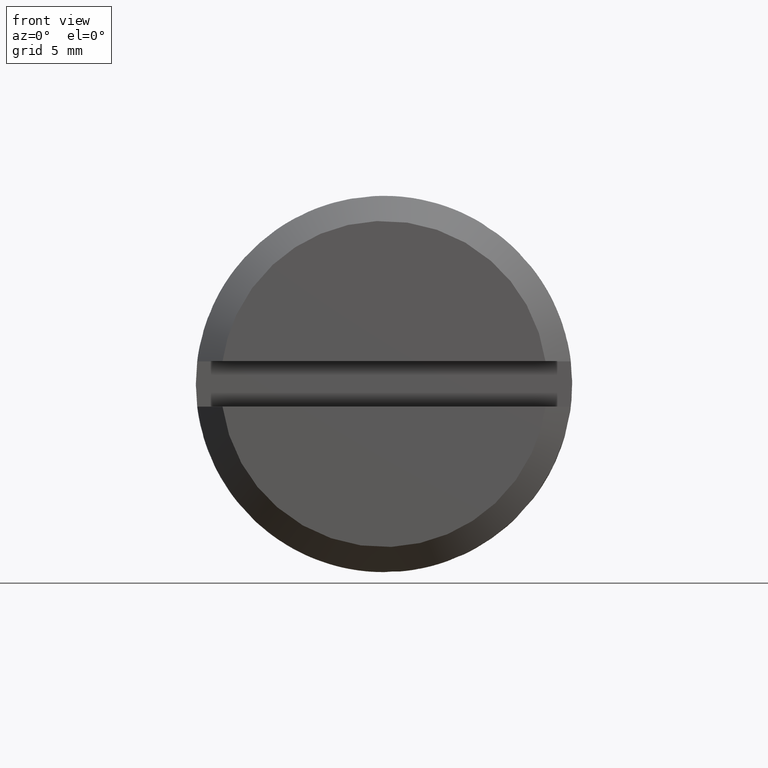
[diagram: clean part render]
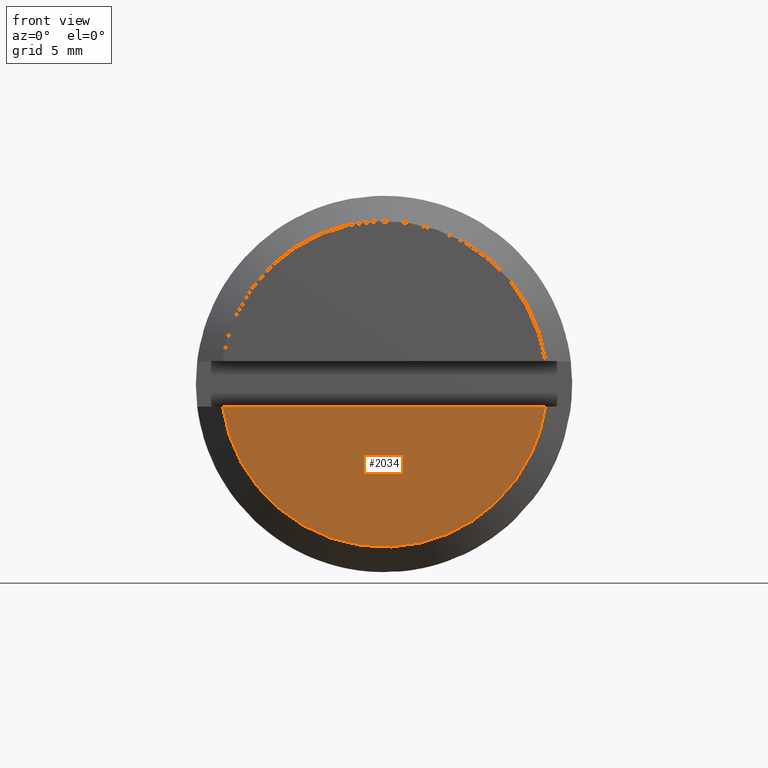
[diagram: same view with one face highlighted and labeled with its STEP entity id]
A machine part, front view. The second image highlights one B-rep face of the part: STEP entity #2034.
In plain terms, the highlighted face is a freeform B-spline surface patch.
Its self-contained STEP definition (entity closure, byte-faithful):
#1807=CARTESIAN_POINT('',(-10.0,6.437390775772459,-0.899999999999984));
#1808=VERTEX_POINT('',#1807);
#1816=CARTESIAN_POINT('',(-10.0,-6.437390775772459,-0.899999999999984));
#1817=VERTEX_POINT('',#1816);
#1818=CARTESIAN_POINT('',(-10.0,6.437390775772459,-0.899999999999984));
#1819=CARTESIAN_POINT('',(-10.0,-6.437390775772459,-0.899999999999984));
#1820=QUASI_UNIFORM_CURVE('',1,(#1818,#1819),.UNSPECIFIED.,.F.,.U.);
#1821=EDGE_CURVE('',#1808,#1817,#1820,.T.);
#1966=CARTESIAN_POINT('',(-10.0,6.437390775772435,-0.899999999999981));
#1967=CARTESIAN_POINT('',(-10.000000000000002,5.654464870610936,-6.500000000000000));
#1968=CARTESIAN_POINT('',(-10.0,0.0,-6.500000000000000));
#1969=CARTESIAN_POINT('',(-10.000000000000002,-5.654464870610934,-6.500000000000000));
#1970=CARTESIAN_POINT('',(-10.0,-6.437390775772435,-0.899999999999984));
#1978=(BOUNDED_CURVE()B_SPLINE_CURVE(2,(#1966,#1967,#1968,#1969,#1970),.UNSPECIFIED.,.F.,.U.)B_SPLINE_CURVE_WITH_KNOTS((3,2,3),(0.0,0.500000000000000,1.0),.UNSPECIFIED.)CURVE()GEOMETRIC_REPRESENTATION_ITEM()RATIONAL_B_SPLINE_CURVE((1.0,0.754473836014721,1.0,0.754473836014721,1.0))REPRESENTATION_ITEM(''));
#1979=EDGE_CURVE('',#1808,#1817,#1978,.T.);
#2025=CARTESIAN_POINT('',(-10.0,-7.080486210177540,-6.779719989146108));
#2026=CARTESIAN_POINT('',(-10.0,7.080486440396576,-6.779719989146108));
#2027=CARTESIAN_POINT('',(-10.0,-7.080486210177540,-0.620279860650165));
#2028=CARTESIAN_POINT('',(-10.0,7.080486440396576,-0.620279860650165));
#2029=B_SPLINE_SURFACE_WITH_KNOTS('',1,1,((#2025,#2027),(#2026,#2028)),.UNSPECIFIED.,.F.,.F.,.U.,(2,2),(2,2),(0.0,14.160972650574120),(0.0,6.159440128495943),.UNSPECIFIED.);
#2030=ORIENTED_EDGE('',*,*,#1821,.F.);
#2031=ORIENTED_EDGE('',*,*,#1979,.T.);
#2032=EDGE_LOOP('',(#2030,#2031));
#2033=FACE_OUTER_BOUND('',#2032,.T.);
#2034=ADVANCED_FACE('',(#2033),#2029,.F.);